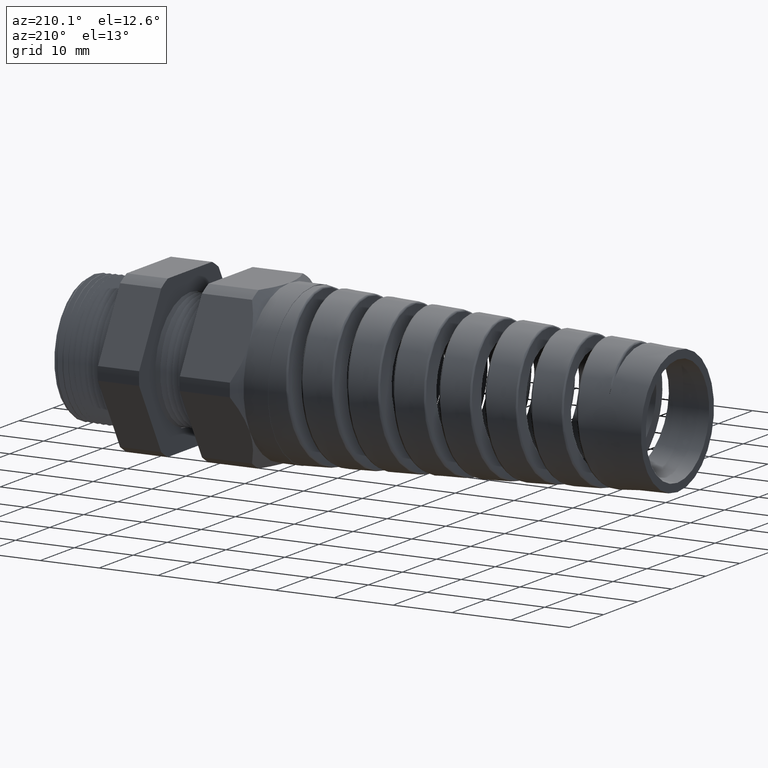
[diagram: clean part render]
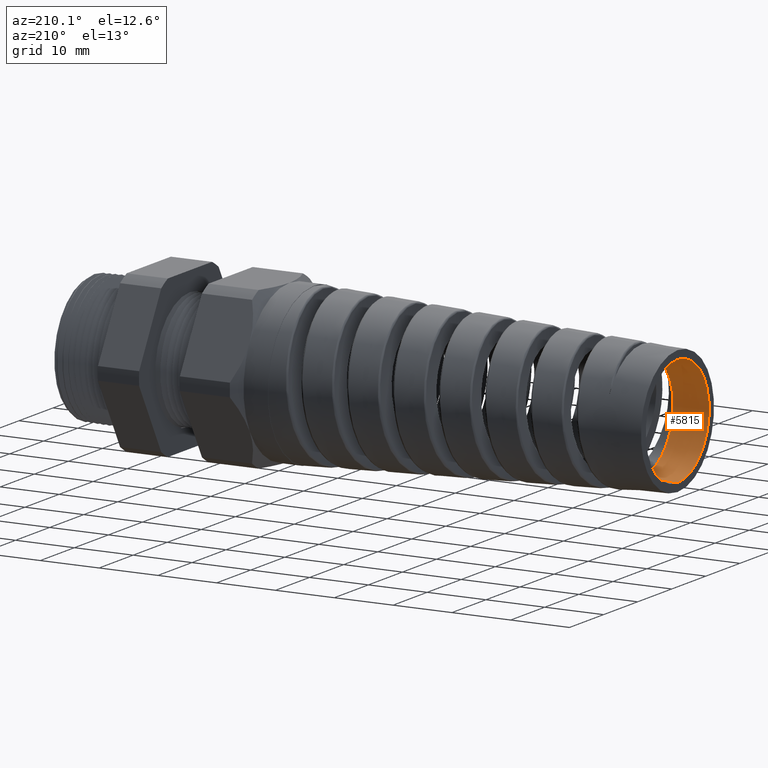
[diagram: same view with one face highlighted and labeled with its STEP entity id]
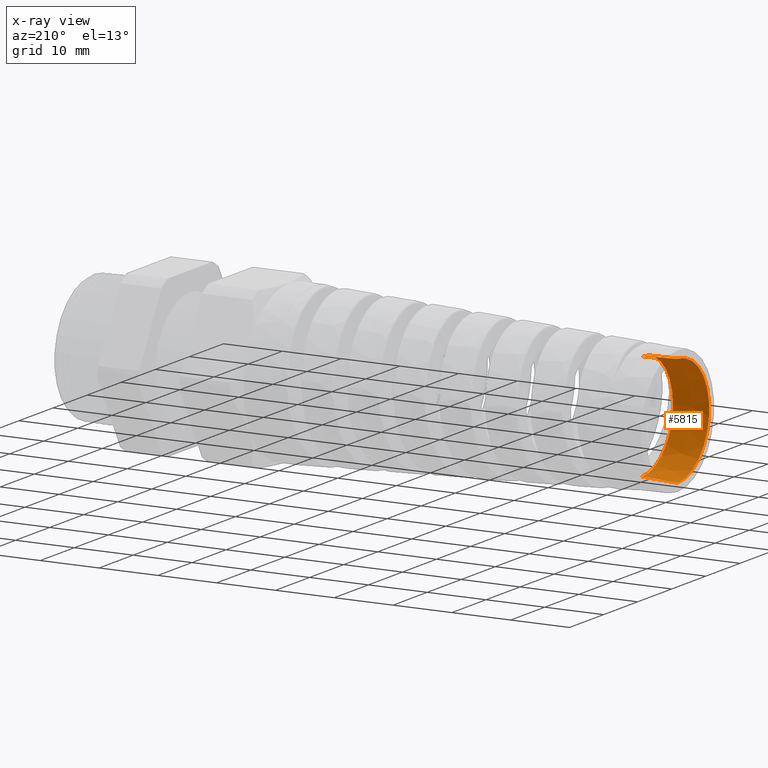
[diagram: x-ray of the same camera — body ghosted, the highlighted face saturated]
A machine part, auxiliary view. The second image highlights one B-rep face of the part: STEP entity #5815.
The next image is the same camera in x-ray: the body ghosted, the highlighted face saturated — about 0% of this face is hidden behind the body in this view.
In plain terms, the highlighted conical surface has half-angle 2.5 deg.
Its self-contained STEP definition (entity closure, byte-faithful):
#5634 = VERTEX_POINT ( 'NONE', #7965 ) ;
#5806 = EDGE_LOOP ( 'NONE', ( #5808, #6051, #6057, #5979, #5983 ) ) ;
#5808 = ORIENTED_EDGE ( 'NONE', *, *, #5810, .T. ) ;
#5810 = EDGE_CURVE ( 'NONE', #5634, #6059, #9770, .T. ) ;
#5815 = ADVANCED_FACE ( 'NONE', ( #9771 ), #9763, .F. ) ;
#5979 = ORIENTED_EDGE ( 'NONE', *, *, #5981, .F. ) ;
#5981 = EDGE_CURVE ( 'NONE', #6049, #6047, #12503, .T. ) ;
#5983 = ORIENTED_EDGE ( 'NONE', *, *, #5985, .F. ) ;
#5985 = EDGE_CURVE ( 'NONE', #5634, #6049, #12498, .T. ) ;
#6045 = EDGE_CURVE ( 'NONE', #6055, #6047, #12618, .T. ) ;
#6047 = VERTEX_POINT ( 'NONE', #12613 ) ;
#6049 = VERTEX_POINT ( 'NONE', #12667 ) ;
#6051 = ORIENTED_EDGE ( 'NONE', *, *, #6053, .T. ) ;
#6053 = EDGE_CURVE ( 'NONE', #6059, #6055, #12665, .T. ) ;
#6055 = VERTEX_POINT ( 'NONE', #12661 ) ;
#6057 = ORIENTED_EDGE ( 'NONE', *, *, #6045, .T. ) ;
#6059 = VERTEX_POINT ( 'NONE', #12655 ) ;
#7965 = CARTESIAN_POINT ( 'NONE',  ( -3.613780000000000200, -0.2740357973398204700, 0.2272452018774932200 ) ) ;
#9760 = DIRECTION ( 'NONE',  ( 0.0000000000000000000, 0.0000000000000000000, 1.000000000000000000 ) ) ;
#9761 = DIRECTION ( 'NONE',  ( -1.000000000000000000, 0.0000000000000000000, 0.0000000000000000000 ) ) ;
#9762 = AXIS2_PLACEMENT_3D ( 'NONE', #9765, #9761, #9760 ) ;
#9763 = CONICAL_SURFACE ( 'NONE', #9762, 0.3560000000000194100, 0.04363323129985833400 ) ;
#9765 = CARTESIAN_POINT ( 'NONE',  ( -3.613780000000000200, 0.0000000000000000000, 0.0000000000000000000 ) ) ;
#9766 = DIRECTION ( 'NONE',  ( 0.0000000000000000000, 0.0000000000000000000, -1.000000000000000000 ) ) ;
#9767 = DIRECTION ( 'NONE',  ( 1.000000000000000000, 0.0000000000000000000, 0.0000000000000000000 ) ) ;
#9768 = CARTESIAN_POINT ( 'NONE',  ( -3.613780000000000200, 0.0000000000000000000, 0.0000000000000000000 ) ) ;
#9769 = AXIS2_PLACEMENT_3D ( 'NONE', #9768, #9767, #9766 ) ;
#9770 = CIRCLE ( 'NONE', #9769, 0.3559999999999997100 ) ;
#9771 = FACE_OUTER_BOUND ( 'NONE', #5806, .T. ) ;
#12494 = DIRECTION ( 'NONE',  ( 0.0000000000000000000, 0.0000000000000000000, 1.000000000000000000 ) ) ;
#12495 = DIRECTION ( 'NONE',  ( -1.000000000000000000, 0.0000000000000000000, 0.0000000000000000000 ) ) ;
#12496 = CARTESIAN_POINT ( 'NONE',  ( -3.613780000000000200, 0.0000000000000000000, 0.0000000000000000000 ) ) ;
#12497 = AXIS2_PLACEMENT_3D ( 'NONE', #12496, #12495, #12494 ) ;
#12498 = CIRCLE ( 'NONE', #12497, 0.3560000000000194100 ) ;
#12500 = DIRECTION ( 'NONE',  ( -0.9990482215818576900, 0.0000000000000000000, 0.04361938736533609700 ) ) ;
#12501 = VECTOR ( 'NONE', #12500, 39.37007874015748100 ) ;
#12502 = CARTESIAN_POINT ( 'NONE',  ( -3.613780000000000200, 0.0000000000000000000, 0.3560000000000194100 ) ) ;
#12503 = LINE ( 'NONE', #12502, #12501 ) ;
#12613 = CARTESIAN_POINT ( 'NONE',  ( -3.850000472440945600, 0.0000000000000000000, 0.3663136085610853600 ) ) ;
#12614 = DIRECTION ( 'NONE',  ( 0.0000000000000000000, 0.0000000000000000000, 1.000000000000000000 ) ) ;
#12615 = DIRECTION ( 'NONE',  ( -1.000000000000000000, 0.0000000000000000000, 0.0000000000000000000 ) ) ;
#12616 = CARTESIAN_POINT ( 'NONE',  ( -3.850000472440945600, 0.0000000000000000000, 0.0000000000000000000 ) ) ;
#12617 = AXIS2_PLACEMENT_3D ( 'NONE', #12616, #12615, #12614 ) ;
#12618 = CIRCLE ( 'NONE', #12617, 0.3663136085610853600 ) ;
#12655 = CARTESIAN_POINT ( 'NONE',  ( -3.613780000000000200, 0.0000000000000000000, -0.3559999999999997100 ) ) ;
#12661 = CARTESIAN_POINT ( 'NONE',  ( -3.850000472440945600, 4.486047882084496300E-017, -0.3663136085610853600 ) ) ;
#12662 = DIRECTION ( 'NONE',  ( -0.9990482215818576900, 5.341834311772734800E-018, -0.04361938736533609700 ) ) ;
#12663 = VECTOR ( 'NONE', #12662, 39.37007874015748100 ) ;
#12664 = CARTESIAN_POINT ( 'NONE',  ( -3.613780000000000200, 4.359742604964815500E-017, -0.3560000000000194100 ) ) ;
#12665 = LINE ( 'NONE', #12664, #12663 ) ;
#12667 = CARTESIAN_POINT ( 'NONE',  ( -3.613780000000000200, 0.0000000000000000000, 0.3560000000000194100 ) ) ;